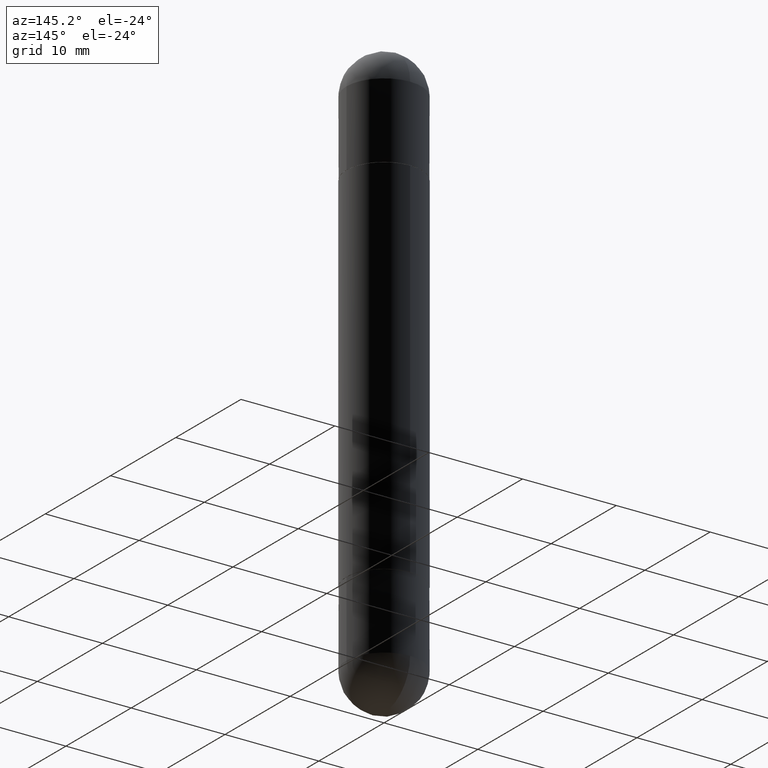
[diagram: clean part render]
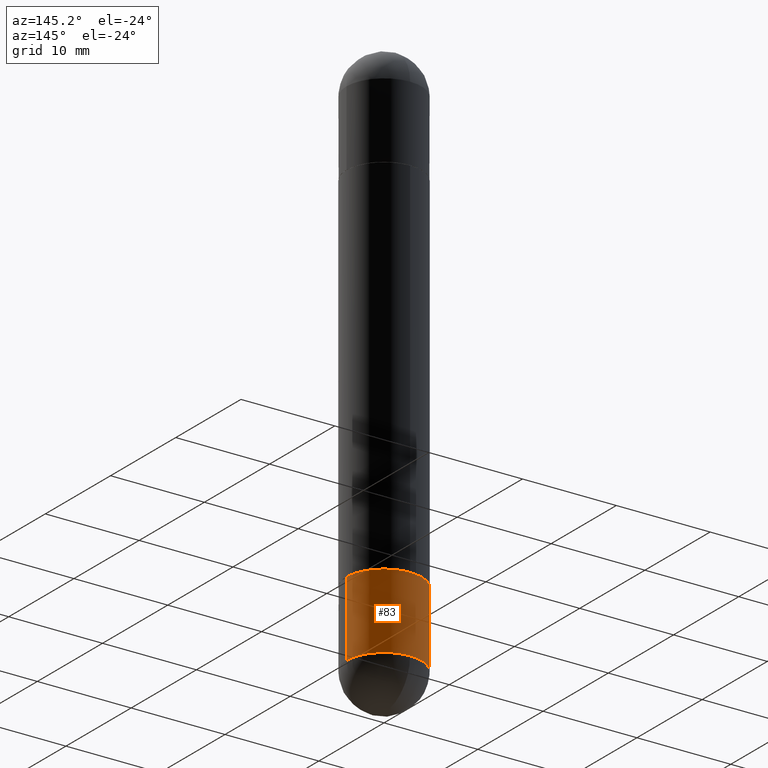
[diagram: same view with one face highlighted and labeled with its STEP entity id]
A machine part, auxiliary view. The second image highlights one B-rep face of the part: STEP entity #83.
In plain terms, the highlighted cylindrical surface (partial cylindrical patch) has radius 4.0005 mm, axis along (-0, 0, 1).
Its self-contained STEP definition (entity closure, byte-faithful):
#4 = EDGE_CURVE ( 'NONE', #603, #650, #86, .T. ) ;
#17 = CARTESIAN_POINT ( 'NONE',  ( 0.1575000000000000011, -1.099816621735586889E-15, 7.679978421878598033E-30 ) ) ;
#25 = VERTEX_POINT ( 'NONE', #147 ) ;
#33 = CARTESIAN_POINT ( 'NONE',  ( 0.000000000000000000, 0.000000000000000000, 0.000000000000000000 ) ) ;
#36 = DIRECTION ( 'NONE',  ( -2.445468806185136597E-29, 3.491481338843145583E-15, 1.000000000000000000 ) ) ;
#39 = DIRECTION ( 'NONE',  ( 1.000000000000000000, -6.982962677686268288E-15, 0.000000000000000000 ) ) ;
#45 = AXIS2_PLACEMENT_3D ( 'NONE', #33, #36, #745 ) ;
#83 = ADVANCED_FACE ( 'NONE', ( #803 ), #364, .T. ) ;
#86 = LINE ( 'NONE', #718, #441 ) ;
#89 = AXIS2_PLACEMENT_3D ( 'NONE', #343, #659, #39 ) ;
#94 = CARTESIAN_POINT ( 'NONE',  ( 1.099816621735642503E-15, 0.1574999999999917577, -2.322800000000000864 ) ) ;
#127 = VECTOR ( 'NONE', #183, 39.37007874015748143 ) ;
#147 = CARTESIAN_POINT ( 'NONE',  ( 0.1575000000000000011, -8.660095738799594725E-15, -2.322799999999999976 ) ) ;
#183 = DIRECTION ( 'NONE',  ( -2.445468806185136877E-29, 3.491481338843145188E-15, 1.000000000000000000 ) ) ;
#196 = VERTEX_POINT ( 'NONE', #94 ) ;
#224 = EDGE_CURVE ( 'NONE', #25, #386, #818, .T. ) ;
#237 = CARTESIAN_POINT ( 'NONE',  ( -0.1575000000000000011, -6.441174308241848852E-15, -2.322799999999999976 ) ) ;
#290 = EDGE_CURVE ( 'NONE', #196, #603, #589, .T. ) ;
#316 = CARTESIAN_POINT ( 'NONE',  ( 5.680334943006836279E-29, -8.110012853864858834E-15, -2.322799999999999976 ) ) ;
#317 = ORIENTED_EDGE ( 'NONE', *, *, #4, .T. ) ;
#337 = CARTESIAN_POINT ( 'NONE',  ( 0.1575000000000000011, -8.110362001998739191E-15, -2.007900000000000240 ) ) ;
#340 = CIRCLE ( 'NONE', #780, 0.1575000000000000011 ) ;
#343 = CARTESIAN_POINT ( 'NONE',  ( 5.680334943006836279E-29, -8.110012853864858834E-15, -2.322799999999999976 ) ) ;
#353 = CARTESIAN_POINT ( 'NONE',  ( 4.910256815939136430E-29, -7.010545380263152499E-15, -2.007900000000000240 ) ) ;
#359 = AXIS2_PLACEMENT_3D ( 'NONE', #316, #631, #433 ) ;
#364 = CYLINDRICAL_SURFACE ( 'NONE', #45, 0.1575000000000000011 ) ;
#379 = EDGE_LOOP ( 'NONE', ( #594, #317, #632, #778, #609 ) ) ;
#386 = VERTEX_POINT ( 'NONE', #337 ) ;
#387 = DIRECTION ( 'NONE',  ( -2.445468806185136877E-29, 3.491481338843145188E-15, 1.000000000000000000 ) ) ;
#418 = EDGE_CURVE ( 'NONE', #25, #196, #556, .T. ) ;
#433 = DIRECTION ( 'NONE',  ( 1.000000000000000000, -6.982962677686268288E-15, 0.000000000000000000 ) ) ;
#441 = VECTOR ( 'NONE', #387, 39.37007874015748143 ) ;
#476 = CARTESIAN_POINT ( 'NONE',  ( -0.1575000000000000011, -6.441174308241848063E-15, -2.007900000000000240 ) ) ;
#537 = DIRECTION ( 'NONE',  ( -2.445468806185136597E-29, 3.491481338843145583E-15, 1.000000000000000000 ) ) ;
#556 = CIRCLE ( 'NONE', #89, 0.1575000000000000011 ) ;
#582 = EDGE_CURVE ( 'NONE', #386, #650, #340, .T. ) ;
#589 = CIRCLE ( 'NONE', #359, 0.1575000000000000011 ) ;
#594 = ORIENTED_EDGE ( 'NONE', *, *, #290, .T. ) ;
#603 = VERTEX_POINT ( 'NONE', #237 ) ;
#609 = ORIENTED_EDGE ( 'NONE', *, *, #418, .T. ) ;
#631 = DIRECTION ( 'NONE',  ( -2.445468806185136597E-29, 3.491481338843145583E-15, 1.000000000000000000 ) ) ;
#632 = ORIENTED_EDGE ( 'NONE', *, *, #582, .F. ) ;
#650 = VERTEX_POINT ( 'NONE', #476 ) ;
#659 = DIRECTION ( 'NONE',  ( -2.445468806185136597E-29, 3.491481338843145583E-15, 1.000000000000000000 ) ) ;
#718 = CARTESIAN_POINT ( 'NONE',  ( -0.1575000000000000011, 1.119104808822157801E-15, -7.747322767151475583E-30 ) ) ;
#745 = DIRECTION ( 'NONE',  ( 1.000000000000000000, -6.982962677686265922E-15, 4.876176775795935232E-29 ) ) ;
#778 = ORIENTED_EDGE ( 'NONE', *, *, #224, .F. ) ;
#780 = AXIS2_PLACEMENT_3D ( 'NONE', #353, #537, #806 ) ;
#803 = FACE_OUTER_BOUND ( 'NONE', #379, .T. ) ;
#806 = DIRECTION ( 'NONE',  ( 1.000000000000000000, -6.982962677686268288E-15, 0.000000000000000000 ) ) ;
#818 = LINE ( 'NONE', #17, #127 ) ;